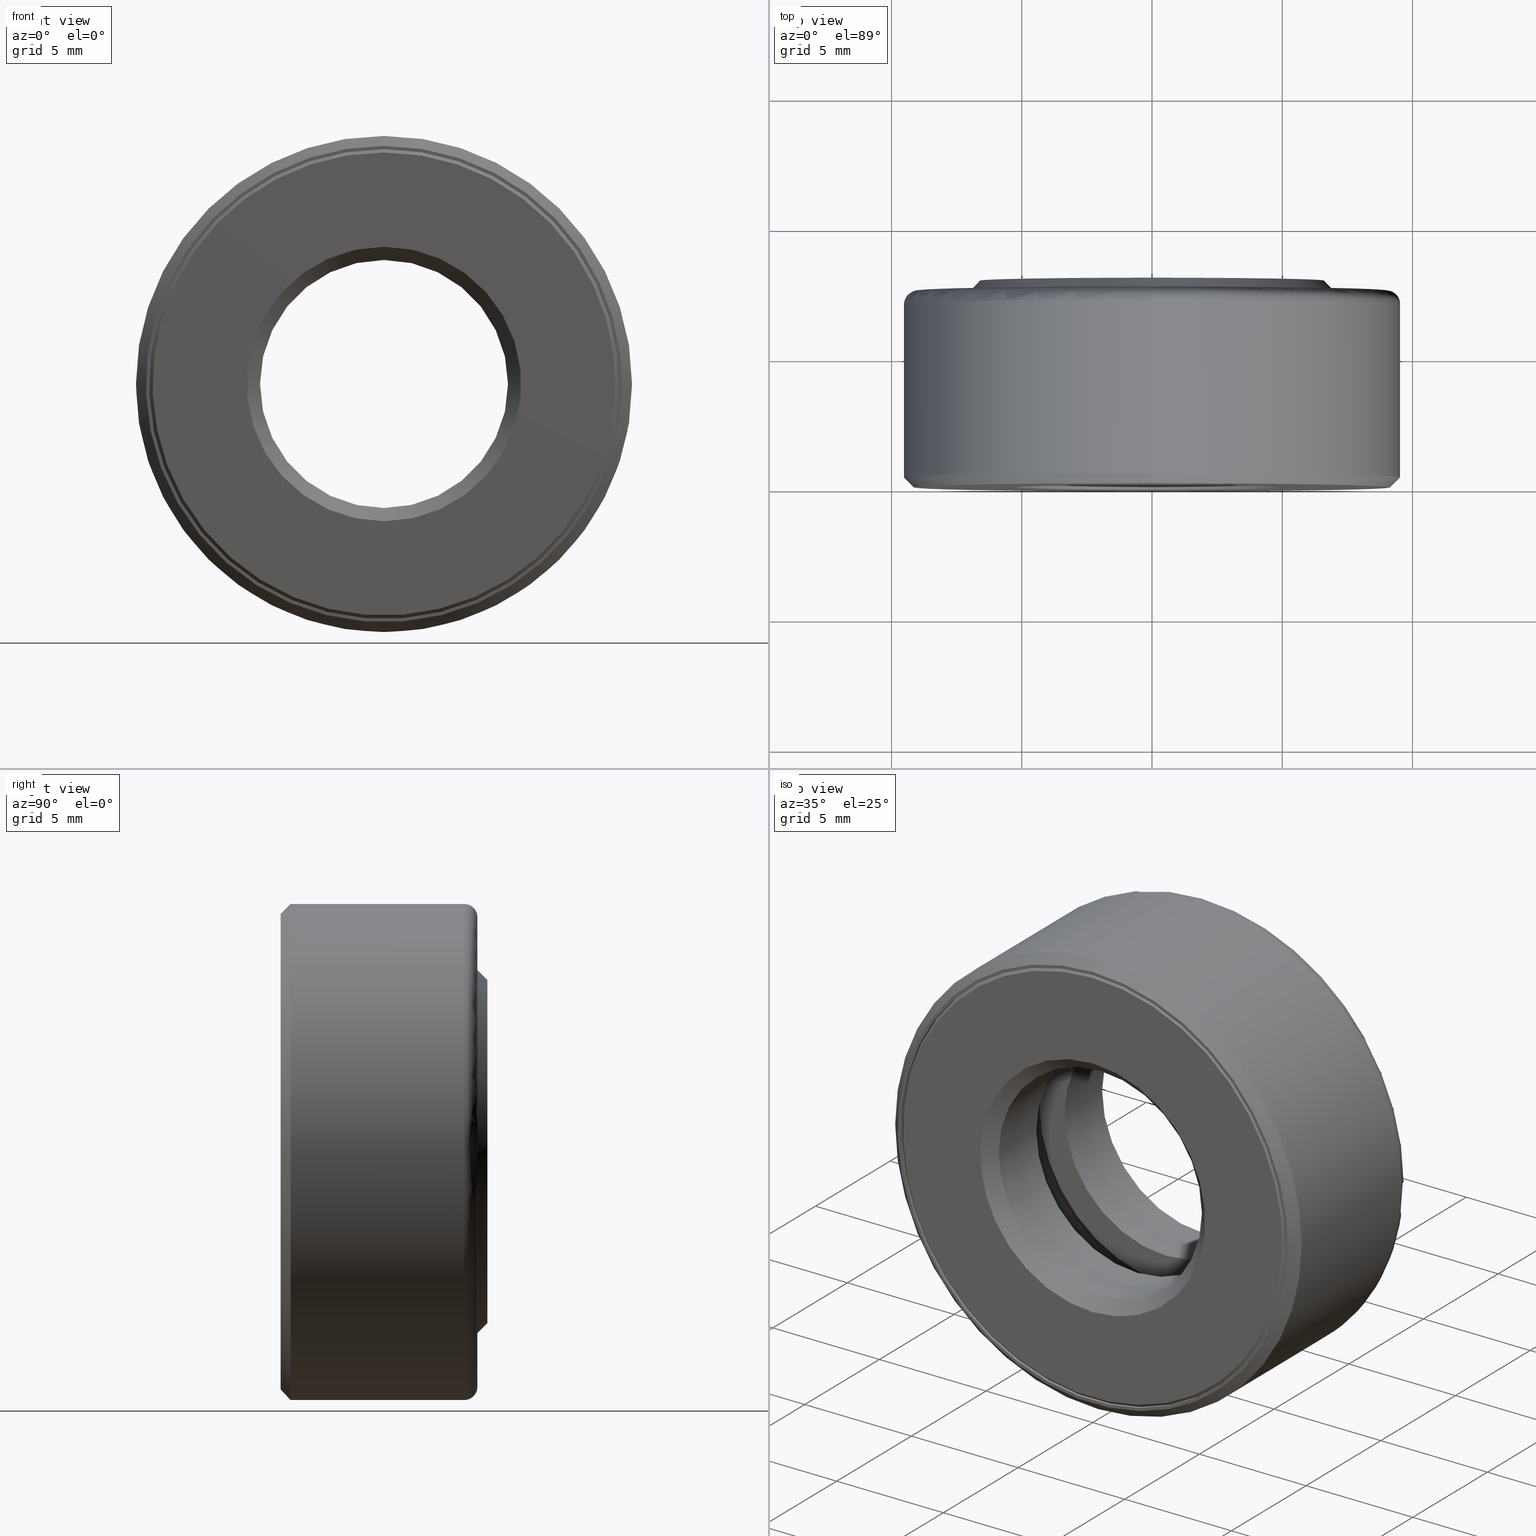
[diagram: canonical four-view strip — front | top / right | iso, engineering-drawing reading convention]
A machine part, canonical four-view strip (front | top / right | iso — engineering-drawing reading convention). The complete STEP part file that produces these views, byte-faithful:
ISO-10303-21;
HEADER;
FILE_DESCRIPTION (( 'STEP AP203' ),
    '1' );
FILE_NAME ('T-100-0.step',
    '2016-06-29T18:27:09',
    ( '' ),
    ( '' ),
    'SwSTEP 2.0',
    'SolidWorks 2016',
    '' );
FILE_SCHEMA (( 'CONFIG_CONTROL_DESIGN' ));
ENDSEC;

DATA;
#1 = CARTESIAN_POINT ( 'NONE',  ( 0.0000000000000000000, 0.02000000000000002500, 0.0000000000000000000 ) ) ;
#2 = FACE_OUTER_BOUND ( 'NONE', #391, .T. ) ;
#3 = CIRCLE ( 'NONE', #589, 0.2075000000000000700 ) ;
#4 = AXIS2_PLACEMENT_3D ( 'NONE', #219, #179, #36 ) ;
#5 = APPROVAL_STATUS ( 'not_yet_approved' ) ;
#6 = CARTESIAN_POINT ( 'NONE',  ( 0.0000000000000000000, 0.1937500000000000100, 0.2334999999999999900 ) ) ;
#7 = CARTESIAN_POINT ( 'NONE',  ( 0.0000000000000000000, 0.1187499999999999900, 0.3550000000000000400 ) ) ;
#8 = VERTEX_POINT ( 'NONE', #103 ) ;
#9 = TOROIDAL_SURFACE ( 'NONE', #300, 0.3550000000000000400, 0.02000000000000002500 ) ;
#10 = CARTESIAN_POINT ( 'NONE',  ( 0.0000000000000000000, 0.1187499999999999800, 0.3335000000000000200 ) ) ;
#11 = ADVANCED_FACE ( 'NONE', ( #110, #133 ), #441, .T. ) ;
#12 = DIRECTION ( 'NONE',  ( 0.0000000000000000000, 0.0000000000000000000, 1.000000000000000000 ) ) ;
#13 = AXIS2_PLACEMENT_3D ( 'NONE', #459, #136, #504 ) ;
#14 = ORIENTED_EDGE ( 'NONE', *, *, #332, .T. ) ;
#15 = ORIENTED_EDGE ( 'NONE', *, *, #464, .T. ) ;
#16 = CIRCLE ( 'NONE', #209, 0.2599999999999998400 ) ;
#17 = FACE_OUTER_BOUND ( 'NONE', #593, .T. ) ;
#18 = AXIS2_PLACEMENT_3D ( 'NONE', #445, #536, #451 ) ;
#19 = CARTESIAN_POINT ( 'NONE',  ( 0.0000000000000000000, -2.134256245050205900E-017, 0.0000000000000000000 ) ) ;
#20 = PRODUCT_RELATED_PRODUCT_CATEGORY ( 'detail', '', ( #278 ) ) ;
#21 = ADVANCED_FACE ( 'NONE', ( #147, #298 ), #472, .T. ) ;
#22 = CARTESIAN_POINT ( 'NONE',  ( 0.0000000000000000000, -2.134256245050205900E-017, 0.0000000000000000000 ) ) ;
#23 = VERTEX_POINT ( 'NONE', #339 ) ;
#24 = FACE_BOUND ( 'NONE', #259, .T. ) ;
#25 = EDGE_CURVE ( 'NONE', #82, #82, #116, .T. ) ;
#26 = DIRECTION ( 'NONE',  ( -0.0000000000000000000, 1.000000000000000000, -0.0000000000000000000 ) ) ;
#27 = ADVANCED_BREP_SHAPE_REPRESENTATION ( 'T-100-0', ( #211, #323, #428, #476, #372, #378, #350 ), #95 ) ;
#28 = DIRECTION ( 'NONE',  ( -0.0000000000000000000, 1.000000000000000000, -0.0000000000000000000 ) ) ;
#29 = CARTESIAN_POINT ( 'NONE',  ( -6.663504083101786500E-033, -2.161650903762001200E-017, 0.0000000000000000000 ) ) ;
#30 = AXIS2_PLACEMENT_3D ( 'NONE', #186, #471, #43 ) ;
#31 = ORIENTED_EDGE ( 'NONE', *, *, #412, .T. ) ;
#32 = DIRECTION ( 'NONE',  ( -0.0000000000000000000, 1.000000000000000000, -0.0000000000000000000 ) ) ;
#33 = FACE_OUTER_BOUND ( 'NONE', #277, .T. ) ;
#34 = DIRECTION ( 'NONE',  ( 0.0000000000000000000, 0.0000000000000000000, 1.000000000000000000 ) ) ;
#35 = EDGE_LOOP ( 'NONE', ( #190 ) ) ;
#36 = DIRECTION ( 'NONE',  ( 0.0000000000000000000, 0.0000000000000000000, 1.000000000000000000 ) ) ;
#37 = AXIS2_PLACEMENT_3D ( 'NONE', #38, #125, #457 ) ;
#38 = CARTESIAN_POINT ( 'NONE',  ( -4.562892661831489700E-016, 0.1937500000000000100, 0.0000000000000000000 ) ) ;
#39 = DIRECTION ( 'NONE',  ( 0.0000000000000000000, 0.0000000000000000000, 1.000000000000000000 ) ) ;
#40 = ORIENTED_EDGE ( 'NONE', *, *, #226, .T. ) ;
#41 = FACE_BOUND ( 'NONE', #379, .T. ) ;
#42 = CARTESIAN_POINT ( 'NONE',  ( -1.763081245911046900E-016, 0.1187500000000000400, 0.0000000000000000000 ) ) ;
#43 = DIRECTION ( 'NONE',  ( 0.0000000000000000000, -0.0000000000000000000, -1.000000000000000000 ) ) ;
#44 = ORIENTED_EDGE ( 'NONE', *, *, #477, .T. ) ;
#45 = DIRECTION ( 'NONE',  ( 0.0000000000000000000, 0.0000000000000000000, 1.000000000000000000 ) ) ;
#46 = COORDINATED_UNIVERSAL_TIME_OFFSET ( 5, 0, .BEHIND. ) ;
#47 = CIRCLE ( 'NONE', #150, 0.3500000000000000300 ) ;
#48 = EDGE_LOOP ( 'NONE', ( #285 ) ) ;
#49 = CARTESIAN_POINT ( 'NONE',  ( 0.0000000000000000000, 0.3125000000000000000, 0.0000000000000000000 ) ) ;
#50 = DIRECTION ( 'NONE',  ( 0.0000000000000000000, 0.0000000000000000000, 1.000000000000000000 ) ) ;
#51 = AXIS2_PLACEMENT_3D ( 'NONE', #235, #53, #57 ) ;
#52 = DIRECTION ( 'NONE',  ( 0.0000000000000000000, 0.0000000000000000000, 1.000000000000000000 ) ) ;
#53 = DIRECTION ( 'NONE',  ( -0.0000000000000000000, 1.000000000000000000, -0.0000000000000000000 ) ) ;
#54 = VERTEX_POINT ( 'NONE', #149 ) ;
#55 = SPHERICAL_SURFACE ( 'NONE', #408, 0.06250000000000001400 ) ;
#56 = CARTESIAN_POINT ( 'NONE',  ( 0.0000000000000000000, 0.2974999999999999900, 0.3550000000000000400 ) ) ;
#57 = DIRECTION ( 'NONE',  ( 0.0000000000000000000, 0.0000000000000000000, 1.000000000000000000 ) ) ;
#58 = AXIS2_PLACEMENT_3D ( 'NONE', #141, #142, #50 ) ;
#59 = CARTESIAN_POINT ( 'NONE',  ( 0.0000000000000000000, 1.707404996040164500E-017, 0.2075000000000000500 ) ) ;
#60 = VERTEX_POINT ( 'NONE', #383 ) ;
#61 = ADVANCED_FACE ( 'NONE', ( #394, #17 ), #586, .F. ) ;
#62 = CIRCLE ( 'NONE', #494, 0.3480000000000000300 ) ;
#63 = DATE_TIME_ROLE ( 'classification_date' ) ;
#64 = CLOSED_SHELL ( 'NONE', ( #357, #304, #87, #251, #530, #61, #594, #208, #67, #118, #346, #21, #573, #65, #581, #247 ) ) ;
#65 = ADVANCED_FACE ( 'NONE', ( #456, #353 ), #426, .F. ) ;
#66 = AXIS2_PLACEMENT_3D ( 'NONE', #321, #410, #373 ) ;
#67 = ADVANCED_FACE ( 'NONE', ( #555, #202 ), #207, .T. ) ;
#68 = APPROVAL_STATUS ( 'not_yet_approved' ) ;
#69 = PERSON_AND_ORGANIZATION ( #334, #479 ) ;
#70 = EDGE_LOOP ( 'NONE', ( #14 ) ) ;
#71 = PERSON_AND_ORGANIZATION_ROLE ( 'classification_officer' ) ;
#72 = PRODUCT_DEFINITION_SHAPE ( 'NONE', 'NONE',  #396 ) ;
#73 = DIRECTION ( 'NONE',  ( -1.000000000000000000, 0.0000000000000000000, 6.982962677686265100E-015 ) ) ;
#74 = EDGE_LOOP ( 'NONE', ( #329 ) ) ;
#75 = CIRCLE ( 'NONE', #348, 0.2334999999999999900 ) ;
#76 = FACE_OUTER_BOUND ( 'NONE', #499, .T. ) ;
#77 = AXIS2_PLACEMENT_3D ( 'NONE', #271, #32, #401 ) ;
#78 = DIRECTION ( 'NONE',  ( 0.0000000000000000000, 0.0000000000000000000, 1.000000000000000000 ) ) ;
#79 = COORDINATED_UNIVERSAL_TIME_OFFSET ( 5, 0, .BEHIND. ) ;
#80 = AXIS2_PLACEMENT_3D ( 'NONE', #558, #520, #341 ) ;
#81 = EDGE_LOOP ( 'NONE', ( #159 ) ) ;
#82 = VERTEX_POINT ( 'NONE', #196 ) ;
#83 = DIRECTION ( 'NONE',  ( 0.0000000000000000000, 0.0000000000000000000, 1.000000000000000000 ) ) ;
#84 = FACE_OUTER_BOUND ( 'NONE', #164, .T. ) ;
#85 = CARTESIAN_POINT ( 'NONE',  ( 0.0000000000000000000, 0.1937499999999999800, 0.0000000000000000000 ) ) ;
#86 = EDGE_CURVE ( 'NONE', #599, #599, #3, .T. ) ;
#87 = ADVANCED_FACE ( 'NONE', ( #76, #547 ), #312, .F. ) ;
#88 = DIRECTION ( 'NONE',  ( 0.0000000000000000000, 0.0000000000000000000, 1.000000000000000000 ) ) ;
#89 = DIRECTION ( 'NONE',  ( -0.0000000000000000000, 1.000000000000000000, 0.0000000000000000000 ) ) ;
#90 = EDGE_LOOP ( 'NONE', ( #94 ) ) ;
#91 = VERTEX_POINT ( 'NONE', #560 ) ;
#92 = CARTESIAN_POINT ( 'NONE',  ( 0.0000000000000000000, 0.0000000000000000000, 0.0000000000000000000 ) ) ;
#93 = FACE_BOUND ( 'NONE', #81, .T. ) ;
#94 = ORIENTED_EDGE ( 'NONE', *, *, #356, .F. ) ;
#95 =( GEOMETRIC_REPRESENTATION_CONTEXT ( 3 ) GLOBAL_UNCERTAINTY_ASSIGNED_CONTEXT ( ( #340 ) ) GLOBAL_UNIT_ASSIGNED_CONTEXT ( ( #473, #482, #389 ) ) REPRESENTATION_CONTEXT ( 'NONE', 'WORKASPACE' ) );
#96 = DIRECTION ( 'NONE',  ( 0.0000000000000000000, 0.0000000000000000000, 1.000000000000000000 ) ) ;
#97 = APPROVAL_PERSON_ORGANIZATION ( #575, #210, #117 ) ;
#98 = DIRECTION ( 'NONE',  ( -0.0000000000000000000, 1.000000000000000000, -0.0000000000000000000 ) ) ;
#99 = EDGE_LOOP ( 'NONE', ( #194 ) ) ;
#100 = AXIS2_PLACEMENT_3D ( 'NONE', #370, #453, #83 ) ;
#101 = VERTEX_POINT ( 'NONE', #104 ) ;
#102 = EDGE_LOOP ( 'NONE', ( #261 ) ) ;
#103 = CARTESIAN_POINT ( 'NONE',  ( 0.0000000000000000000, 0.02000000000000002500, 0.1875000000000000300 ) ) ;
#104 = CARTESIAN_POINT ( 'NONE',  ( 0.0000000000000000000, 0.004999999999999955000, 0.3550000000000000400 ) ) ;
#105 = ORIENTED_EDGE ( 'NONE', *, *, #119, .T. ) ;
#106 = CARTESIAN_POINT ( 'NONE',  ( 0.0000000000000000000, 0.2774999999999999700, 0.3550000000000000400 ) ) ;
#107 = PERSON_AND_ORGANIZATION ( #334, #479 ) ;
#108 = CIRCLE ( 'NONE', #203, 0.3749999999999999400 ) ;
#109 = CC_DESIGN_PERSON_AND_ORGANIZATION_ASSIGNMENT ( #511, #71, ( #566 ) ) ;
#110 = FACE_OUTER_BOUND ( 'NONE', #430, .T. ) ;
#111 = DIRECTION ( 'NONE',  ( 0.0000000000000000000, 0.0000000000000000000, 1.000000000000000000 ) ) ;
#112 = AXIS2_PLACEMENT_3D ( 'NONE', #137, #371, #458 ) ;
#113 = EDGE_LOOP ( 'NONE', ( #263 ) ) ;
#114 = FACE_BOUND ( 'NONE', #381, .T. ) ;
#115 = ADVANCED_FACE ( 'NONE', ( #84, #337 ), #175, .F. ) ;
#116 = CIRCLE ( 'NONE', #155, 0.2950000000000000400 ) ;
#117 = APPROVAL_ROLE ( '' ) ;
#118 = ADVANCED_FACE ( 'NONE', ( #182, #215 ), #311, .F. ) ;
#119 = EDGE_CURVE ( 'NONE', #181, #181, #554, .T. ) ;
#120 = COORDINATED_UNIVERSAL_TIME_OFFSET ( 5, 0, .BEHIND. ) ;
#121 = DIRECTION ( 'NONE',  ( -0.0000000000000000000, 1.000000000000000000, -0.0000000000000000000 ) ) ;
#122 = ORIENTED_EDGE ( 'NONE', *, *, #226, .F. ) ;
#123 = DIRECTION ( 'NONE',  ( -0.0000000000000000000, 1.000000000000000000, -0.0000000000000000000 ) ) ;
#124 = CIRCLE ( 'NONE', #135, 0.3550000000000000400 ) ;
#125 = DIRECTION ( 'NONE',  ( 0.0000000000000000000, -1.000000000000000000, 0.0000000000000000000 ) ) ;
#126 = LOCAL_TIME ( 14, 27, 9.000000000000000000, #305 ) ;
#127 = AXIS2_PLACEMENT_3D ( 'NONE', #167, #537, #306 ) ;
#128 = DIRECTION ( 'NONE',  ( -0.0000000000000000000, 1.000000000000000000, -0.0000000000000000000 ) ) ;
#129 = DIRECTION ( 'NONE',  ( 0.0000000000000000000, 0.0000000000000000000, 1.000000000000000000 ) ) ;
#130 = ORIENTED_EDGE ( 'NONE', *, *, #366, .F. ) ;
#131 = DIRECTION ( 'NONE',  ( -0.0000000000000000000, 1.000000000000000000, -0.0000000000000000000 ) ) ;
#132 = SPHERICAL_SURFACE ( 'NONE', #488, 0.06250000000000001400 ) ;
#133 = FACE_BOUND ( 'NONE', #230, .T. ) ;
#134 = PLANE ( 'NONE',  #37 ) ;
#135 = AXIS2_PLACEMENT_3D ( 'NONE', #183, #595, #39 ) ;
#136 = DIRECTION ( 'NONE',  ( -1.000000000000000000, 0.0000000000000000000, 3.491481338843132600E-015 ) ) ;
#137 = CARTESIAN_POINT ( 'NONE',  ( 0.0000000000000000000, 0.0000000000000000000, 0.0000000000000000000 ) ) ;
#138 = VERTEX_POINT ( 'NONE', #59 ) ;
#139 = CARTESIAN_POINT ( 'NONE',  ( 0.0000000000000000000, 0.2774999999999999700, 0.0000000000000000000 ) ) ;
#140 = FACE_OUTER_BOUND ( 'NONE', #369, .T. ) ;
#141 = CARTESIAN_POINT ( 'NONE',  ( 0.0000000000000000000, 0.2774999999999999700, 0.0000000000000000000 ) ) ;
#142 = DIRECTION ( 'NONE',  ( -0.0000000000000000000, 1.000000000000000000, -0.0000000000000000000 ) ) ;
#143 = APPROVAL_DATE_TIME ( #568, #210 ) ;
#144 = CLOSED_SHELL ( 'NONE', ( #291 ) ) ;
#145 = DIRECTION ( 'NONE',  ( 1.000000000000000000, 0.0000000000000000000, 0.0000000000000000000 ) ) ;
#146 = FACE_OUTER_BOUND ( 'NONE', #518, .T. ) ;
#147 = FACE_OUTER_BOUND ( 'NONE', #308, .T. ) ;
#148 = CARTESIAN_POINT ( 'NONE',  ( 0.0000000000000000000, 0.004999999999999955000, 0.0000000000000000000 ) ) ;
#149 = CARTESIAN_POINT ( 'NONE',  ( 0.0000000000000000000, 0.1937499999999999800, 0.3480000000000000300 ) ) ;
#150 = AXIS2_PLACEMENT_3D ( 'NONE', #19, #447, #584 ) ;
#151 = CC_DESIGN_APPROVAL ( #210, ( #566 ) ) ;
#152 = TOROIDAL_SURFACE ( 'NONE', #505, 0.2834999999999999700, 0.06250000000000001400 ) ;
#153 = CARTESIAN_POINT ( 'NONE',  ( 0.0000000000000000000, 0.0000000000000000000, 0.0000000000000000000 ) ) ;
#154 = CARTESIAN_POINT ( 'NONE',  ( 0.0000000000000000000, 0.2774999999999999700, 0.2949999999999999800 ) ) ;
#155 = AXIS2_PLACEMENT_3D ( 'NONE', #171, #539, #449 ) ;
#156 = MECHANICAL_CONTEXT ( 'NONE', #521, 'mechanical' ) ;
#157 = EDGE_LOOP ( 'NONE', ( #442 ) ) ;
#158 = CC_DESIGN_PERSON_AND_ORGANIZATION_ASSIGNMENT ( #107, #484, ( #278 ) ) ;
#159 = ORIENTED_EDGE ( 'NONE', *, *, #244, .T. ) ;
#160 = ADVANCED_FACE ( 'NONE', ( #114, #146 ), #134, .T. ) ;
#161 = TOROIDAL_SURFACE ( 'NONE', #77, 0.2834999999999999700, 0.06250000000000001400 ) ;
#162 = ORIENTED_EDGE ( 'NONE', *, *, #25, .F. ) ;
#163 = AXIS2_PLACEMENT_3D ( 'NONE', #139, #508, #548 ) ;
#164 = EDGE_LOOP ( 'NONE', ( #416 ) ) ;
#165 = VERTEX_POINT ( 'NONE', #384 ) ;
#166 = CIRCLE ( 'NONE', #220, 0.1875000000000000600 ) ;
#167 = CARTESIAN_POINT ( 'NONE',  ( 1.886086914230402700E-016, 0.1187499999999999900, 0.0000000000000000000 ) ) ;
#168 = ADVANCED_FACE ( 'NONE', ( #500, #600 ), #229, .T. ) ;
#169 = DIRECTION ( 'NONE',  ( -0.0000000000000000000, 1.000000000000000000, 0.0000000000000000000 ) ) ;
#170 = DIRECTION ( 'NONE',  ( 1.047444401652940000E-014, 0.0000000000000000000, 1.000000000000000000 ) ) ;
#171 = CARTESIAN_POINT ( 'NONE',  ( 0.0000000000000000000, 0.2974999999999999900, 0.0000000000000000000 ) ) ;
#172 = DIRECTION ( 'NONE',  ( 0.0000000000000000000, 0.0000000000000000000, 1.000000000000000000 ) ) ;
#173 = ORIENTED_EDGE ( 'NONE', *, *, #534, .T. ) ;
#174 = DIRECTION ( 'NONE',  ( 6.982962677686265100E-015, -0.0000000000000000000, 1.000000000000000000 ) ) ;
#175 = CYLINDRICAL_SURFACE ( 'NONE', #187, 0.1875000000000000600 ) ;
#176 = EDGE_LOOP ( 'NONE', ( #524 ) ) ;
#177 = AXIS2_PLACEMENT_3D ( 'NONE', #42, #267, #185 ) ;
#178 = DIRECTION ( 'NONE',  ( -0.0000000000000000000, 1.000000000000000000, 0.0000000000000000000 ) ) ;
#179 = DIRECTION ( 'NONE',  ( -0.0000000000000000000, 1.000000000000000000, -0.0000000000000000000 ) ) ;
#180 = AXIS2_PLACEMENT_3D ( 'NONE', #415, #279, #550 ) ;
#181 = VERTEX_POINT ( 'NONE', #289 ) ;
#182 = FACE_OUTER_BOUND ( 'NONE', #213, .T. ) ;
#183 = CARTESIAN_POINT ( 'NONE',  ( 0.0000000000000000000, 0.1187499999999999900, 0.0000000000000000000 ) ) ;
#184 = AXIS2_PLACEMENT_3D ( 'NONE', #275, #221, #330 ) ;
#185 = DIRECTION ( 'NONE',  ( 0.0000000000000000000, -0.0000000000000000000, -1.000000000000000000 ) ) ;
#186 = CARTESIAN_POINT ( 'NONE',  ( 1.438303121664270200E-016, 0.1937500000000000100, 0.0000000000000000000 ) ) ;
#187 = AXIS2_PLACEMENT_3D ( 'NONE', #402, #217, #34 ) ;
#188 = APPROVAL_DATE_TIME ( #432, #424 ) ;
#189 = CIRCLE ( 'NONE', #596, 0.1875000000000000600 ) ;
#190 = ORIENTED_EDGE ( 'NONE', *, *, #433, .F. ) ;
#191 = DIRECTION ( 'NONE',  ( -0.0000000000000000000, 1.000000000000000000, -0.0000000000000000000 ) ) ;
#192 = DIRECTION ( 'NONE',  ( 0.0000000000000000000, 0.0000000000000000000, 1.000000000000000000 ) ) ;
#193 = DIRECTION ( 'NONE',  ( 0.0000000000000000000, 0.0000000000000000000, 1.000000000000000000 ) ) ;
#194 = ORIENTED_EDGE ( 'NONE', *, *, #579, .F. ) ;
#195 = EDGE_CURVE ( 'NONE', #309, #309, #124, .T. ) ;
#196 = CARTESIAN_POINT ( 'NONE',  ( 0.0000000000000000000, 0.2974999999999999900, 0.2950000000000000400 ) ) ;
#197 = DIRECTION ( 'NONE',  ( -0.0000000000000000000, 1.000000000000000000, -0.0000000000000000000 ) ) ;
#198 = CARTESIAN_POINT ( 'NONE',  ( 0.0000000000000000000, 0.1187499999999999900, 0.2334999999999999900 ) ) ;
#199 = ORIENTED_EDGE ( 'NONE', *, *, #429, .F. ) ;
#200 = LOCAL_TIME ( 14, 27, 9.000000000000000000, #214 ) ;
#201 = FACE_OUTER_BOUND ( 'NONE', #512, .T. ) ;
#202 = FACE_BOUND ( 'NONE', #363, .T. ) ;
#203 = AXIS2_PLACEMENT_3D ( 'NONE', #258, #28, #78 ) ;
#204 = PERSON_AND_ORGANIZATION ( #334, #479 ) ;
#205 = AXIS2_PLACEMENT_3D ( 'NONE', #1, #333, #12 ) ;
#206 = EDGE_LOOP ( 'NONE', ( #130 ) ) ;
#207 = CONICAL_SURFACE ( 'NONE', #4, 0.3600000000000000400, 0.7853981633974441700 ) ;
#208 = ADVANCED_FACE ( 'NONE', ( #462, #418 ), #368, .T. ) ;
#209 = AXIS2_PLACEMENT_3D ( 'NONE', #49, #382, #272 ) ;
#210 = APPROVAL ( #486, 'UNSPECIFIED' ) ;
#211 = MANIFOLD_SOLID_BREP ( 'Revolve2[1]', #64 ) ;
#212 = DIRECTION ( 'NONE',  ( 0.0000000000000000000, 0.0000000000000000000, 1.000000000000000000 ) ) ;
#213 = EDGE_LOOP ( 'NONE', ( #234 ) ) ;
#214 = COORDINATED_UNIVERSAL_TIME_OFFSET ( 5, 0, .BEHIND. ) ;
#215 = FACE_BOUND ( 'NONE', #70, .T. ) ;
#216 = EDGE_LOOP ( 'NONE', ( #578 ) ) ;
#217 = DIRECTION ( 'NONE',  ( -0.0000000000000000000, 1.000000000000000000, -0.0000000000000000000 ) ) ;
#218 = DIRECTION ( 'NONE',  ( -0.0000000000000000000, 1.000000000000000000, -0.0000000000000000000 ) ) ;
#219 = CARTESIAN_POINT ( 'NONE',  ( 0.0000000000000000000, -2.134256245050205600E-017, 0.0000000000000000000 ) ) ;
#220 = AXIS2_PLACEMENT_3D ( 'NONE', #331, #467, #232 ) ;
#221 = DIRECTION ( 'NONE',  ( -0.0000000000000000000, 1.000000000000000000, -0.0000000000000000000 ) ) ;
#222 = APPROVAL_PERSON_ORGANIZATION ( #69, #269, #528 ) ;
#223 = DIRECTION ( 'NONE',  ( 0.0000000000000000000, 0.0000000000000000000, 1.000000000000000000 ) ) ;
#224 = ORIENTED_EDGE ( 'NONE', *, *, #244, .F. ) ;
#225 = AXIS2_PLACEMENT_3D ( 'NONE', #260, #264, #496 ) ;
#226 = EDGE_CURVE ( 'NONE', #54, #54, #62, .T. ) ;
#227 = CALENDAR_DATE ( 2016, 29, 6 ) ;
#228 = VERTEX_POINT ( 'NONE', #243 ) ;
#229 = CONICAL_SURFACE ( 'NONE', #66, 0.2599999999999998400, 0.7853981633974495000 ) ;
#230 = EDGE_LOOP ( 'NONE', ( #347 ) ) ;
#231 = DIRECTION ( 'NONE',  ( 0.0000000000000000000, 0.0000000000000000000, 1.000000000000000000 ) ) ;
#232 = DIRECTION ( 'NONE',  ( 0.0000000000000000000, 0.0000000000000000000, 1.000000000000000000 ) ) ;
#233 = FACE_OUTER_BOUND ( 'NONE', #497, .T. ) ;
#234 = ORIENTED_EDGE ( 'NONE', *, *, #254, .F. ) ;
#235 = CARTESIAN_POINT ( 'NONE',  ( 0.0000000000000000000, 0.1187499999999999900, 0.0000000000000000000 ) ) ;
#236 = CARTESIAN_POINT ( 'NONE',  ( 0.0000000000000000000, 0.3125000000000000000, 0.2075000000000000700 ) ) ;
#237 = SHAPE_DEFINITION_REPRESENTATION ( #72, #27 ) ;
#238 = CARTESIAN_POINT ( 'NONE',  ( 0.0000000000000000000, 0.3125000000000000000, 0.2599999999999998400 ) ) ;
#239 = AXIS2_PLACEMENT_3D ( 'NONE', #450, #218, #313 ) ;
#240 = CLOSED_SHELL ( 'NONE', ( #527 ) ) ;
#241 = VERTEX_POINT ( 'NONE', #388 ) ;
#242 = CYLINDRICAL_SURFACE ( 'NONE', #540, 0.1875000000000000600 ) ;
#243 = CARTESIAN_POINT ( 'NONE',  ( 0.0000000000000000000, 0.1187500000000000600, 0.1875000000000000600 ) ) ;
#244 = EDGE_CURVE ( 'NONE', #287, #287, #481, .T. ) ;
#245 = ADVANCED_FACE ( 'NONE', ( ), #344, .T. ) ;
#246 = EDGE_LOOP ( 'NONE', ( #162 ) ) ;
#247 = ADVANCED_FACE ( 'NONE', ( #41, #434 ), #549, .F. ) ;
#248 = CIRCLE ( 'NONE', #376, 0.2075000000000000500 ) ;
#249 = ORIENTED_EDGE ( 'NONE', *, *, #552, .F. ) ;
#250 = PERSON_AND_ORGANIZATION_ROLE ( 'design_supplier' ) ;
#251 = ADVANCED_FACE ( 'NONE', ( #233, #93 ), #375, .F. ) ;
#252 = AXIS2_PLACEMENT_3D ( 'NONE', #324, #89, #413 ) ;
#253 = PLANE ( 'NONE',  #127 ) ;
#254 = EDGE_CURVE ( 'NONE', #165, #165, #514, .T. ) ;
#255 = FACE_OUTER_BOUND ( 'NONE', #437, .T. ) ;
#256 = CIRCLE ( 'NONE', #205, 0.1875000000000000300 ) ;
#257 = CALENDAR_DATE ( 2016, 29, 6 ) ;
#258 = CARTESIAN_POINT ( 'NONE',  ( 0.0000000000000000000, 0.01500000000000001200, 0.0000000000000000000 ) ) ;
#259 = EDGE_LOOP ( 'NONE', ( #44 ) ) ;
#260 = CARTESIAN_POINT ( 'NONE',  ( 0.0000000000000000000, 0.2974999999999999900, 0.0000000000000000000 ) ) ;
#261 = ORIENTED_EDGE ( 'NONE', *, *, #332, .F. ) ;
#262 = CIRCLE ( 'NONE', #58, 0.3550000000000000400 ) ;
#263 = ORIENTED_EDGE ( 'NONE', *, *, #567, .T. ) ;
#264 = DIRECTION ( 'NONE',  ( 0.0000000000000000000, -1.000000000000000000, 0.0000000000000000000 ) ) ;
#265 = DIRECTION ( 'NONE',  ( -0.0000000000000000000, 1.000000000000000000, -0.0000000000000000000 ) ) ;
#266 = VERTEX_POINT ( 'NONE', #345 ) ;
#267 = DIRECTION ( 'NONE',  ( 0.0000000000000000000, -1.000000000000000000, 0.0000000000000000000 ) ) ;
#268 = CIRCLE ( 'NONE', #478, 0.3550000000000000400 ) ;
#269 = APPROVAL ( #68, 'UNSPECIFIED' ) ;
#270 = DIRECTION ( 'NONE',  ( 0.0000000000000000000, 0.0000000000000000000, -1.000000000000000000 ) ) ;
#271 = CARTESIAN_POINT ( 'NONE',  ( 0.0000000000000000000, 0.1562500000000000000, 0.0000000000000000000 ) ) ;
#272 = DIRECTION ( 'NONE',  ( 0.0000000000000000000, 0.0000000000000000000, 1.000000000000000000 ) ) ;
#273 = AXIS2_PLACEMENT_3D ( 'NONE', #360, #169, #490 ) ;
#274 = ADVANCED_FACE ( 'NONE', ( #541, #310 ), #161, .F. ) ;
#275 = CARTESIAN_POINT ( 'NONE',  ( 0.0000000000000000000, 0.2974999999999999900, 0.0000000000000000000 ) ) ;
#276 = ORIENTED_EDGE ( 'NONE', *, *, #254, .T. ) ;
#277 = EDGE_LOOP ( 'NONE', ( #606 ) ) ;
#278 = PRODUCT ( 'T-100-0', 'T-100-0', '', ( #156 ) ) ;
#279 = DIRECTION ( 'NONE',  ( -0.0000000000000000000, 1.000000000000000000, -0.0000000000000000000 ) ) ;
#280 = FACE_OUTER_BOUND ( 'NONE', #99, .T. ) ;
#281 = ORIENTED_EDGE ( 'NONE', *, *, #195, .F. ) ;
#282 = CARTESIAN_POINT ( 'NONE',  ( 0.0000000000000000000, 0.2774999999999999700, 0.0000000000000000000 ) ) ;
#283 = AXIS2_PLACEMENT_3D ( 'NONE', #489, #123, #588 ) ;
#284 =( LENGTH_UNIT ( ) NAMED_UNIT ( * ) SI_UNIT ( $, .METRE. ) );
#285 = ORIENTED_EDGE ( 'NONE', *, *, #286, .F. ) ;
#286 = EDGE_CURVE ( 'NONE', #385, #385, #108, .T. ) ;
#287 = VERTEX_POINT ( 'NONE', #154 ) ;
#288 = FACE_OUTER_BOUND ( 'NONE', #325, .T. ) ;
#289 = CARTESIAN_POINT ( 'NONE',  ( 0.0000000000000000000, 0.1937500000000000100, 0.3335000000000000200 ) ) ;
#290 = DIRECTION ( 'NONE',  ( -0.0000000000000000000, 1.000000000000000000, -0.0000000000000000000 ) ) ;
#291 = ADVANCED_FACE ( 'NONE', ( ), #297, .T. ) ;
#292 = DIRECTION ( 'NONE',  ( 0.0000000000000000000, 0.0000000000000000000, 1.000000000000000000 ) ) ;
#293 = DIMENSIONAL_EXPONENTS ( 1.000000000000000000, 0.0000000000000000000, 0.0000000000000000000, 0.0000000000000000000, 0.0000000000000000000, 0.0000000000000000000, 0.0000000000000000000 ) ;
#294 = CC_DESIGN_SECURITY_CLASSIFICATION ( #566, ( #448 ) ) ;
#295 = ORIENTED_EDGE ( 'NONE', *, *, #25, .T. ) ;
#296 = PERSON_AND_ORGANIZATION ( #334, #479 ) ;
#297 = SPHERICAL_SURFACE ( 'NONE', #318, 0.06250000000000001400 ) ;
#298 = FACE_BOUND ( 'NONE', #485, .T. ) ;
#299 = EDGE_CURVE ( 'NONE', #361, #361, #47, .T. ) ;
#300 = AXIS2_PLACEMENT_3D ( 'NONE', #282, #290, #52 ) ;
#301 = DATE_TIME_ROLE ( 'creation_date' ) ;
#302 = EDGE_LOOP ( 'NONE', ( #419 ) ) ;
#303 = FACE_OUTER_BOUND ( 'NONE', #502, .T. ) ;
#304 = ADVANCED_FACE ( 'NONE', ( #585, #574 ), #253, .F. ) ;
#305 = COORDINATED_UNIVERSAL_TIME_OFFSET ( 5, 0, .BEHIND. ) ;
#306 = DIRECTION ( 'NONE',  ( 0.0000000000000000000, -0.0000000000000000000, -1.000000000000000000 ) ) ;
#307 = CARTESIAN_POINT ( 'NONE',  ( 0.0000000000000000000, 0.2925000000000000400, 0.0000000000000000000 ) ) ;
#308 = EDGE_LOOP ( 'NONE', ( #351 ) ) ;
#309 = VERTEX_POINT ( 'NONE', #7 ) ;
#310 = FACE_OUTER_BOUND ( 'NONE', #216, .T. ) ;
#311 = PLANE ( 'NONE',  #531 ) ;
#312 = CYLINDRICAL_SURFACE ( 'NONE', #18, 0.3550000000000000400 ) ;
#313 = DIRECTION ( 'NONE',  ( 0.0000000000000000000, 0.0000000000000000000, 1.000000000000000000 ) ) ;
#314 = DIRECTION ( 'NONE',  ( 0.0000000000000000000, 0.0000000000000000000, -1.000000000000000000 ) ) ;
#315 = AXIS2_PLACEMENT_3D ( 'NONE', #153, #197, #475 ) ;
#316 = DIRECTION ( 'NONE',  ( 0.0000000000000000000, -1.000000000000000000, 0.0000000000000000000 ) ) ;
#317 = ORIENTED_EDGE ( 'NONE', *, *, #299, .F. ) ;
#318 = AXIS2_PLACEMENT_3D ( 'NONE', #406, #533, #170 ) ;
#319 = VERTEX_POINT ( 'NONE', #106 ) ;
#320 = ORIENTED_EDGE ( 'NONE', *, *, #552, .T. ) ;
#321 = CARTESIAN_POINT ( 'NONE',  ( 0.0000000000000000000, 0.3125000000000000000, 0.0000000000000000000 ) ) ;
#322 = ADVANCED_FACE ( 'NONE', ( ), #55, .T. ) ;
#323 = MANIFOLD_SOLID_BREP ( 'Revolve2[2]', #463 ) ;
#324 = CARTESIAN_POINT ( 'NONE',  ( 0.0000000000000000000, 0.2774999999999999700, 0.0000000000000000000 ) ) ;
#325 = EDGE_LOOP ( 'NONE', ( #224 ) ) ;
#326 = APPROVAL_PERSON_ORGANIZATION ( #343, #424, #335 ) ;
#327 = CYLINDRICAL_SURFACE ( 'NONE', #474, 0.3550000000000000400 ) ;
#328 = CC_DESIGN_PERSON_AND_ORGANIZATION_ASSIGNMENT ( #204, #397, ( #448 ) ) ;
#329 = ORIENTED_EDGE ( 'NONE', *, *, #477, .F. ) ;
#330 = DIRECTION ( 'NONE',  ( 0.0000000000000000000, 0.0000000000000000000, 1.000000000000000000 ) ) ;
#331 = CARTESIAN_POINT ( 'NONE',  ( 0.0000000000000000000, 0.1187500000000000600, 0.0000000000000000000 ) ) ;
#332 = EDGE_CURVE ( 'NONE', #23, #23, #525, .T. ) ;
#333 = DIRECTION ( 'NONE',  ( -0.0000000000000000000, 1.000000000000000000, -0.0000000000000000000 ) ) ;
#334 = PERSON ( 'UNSPECIFIED', 'UNSPECIFIED', 'UNSPECIFIED', ('UNSPECIFIED'), ('UNSPECIFIED'), ('UNSPECIFIED') ) ;
#335 = APPROVAL_ROLE ( '' ) ;
#336 = FACE_OUTER_BOUND ( 'NONE', #583, .T. ) ;
#337 = FACE_OUTER_BOUND ( 'NONE', #435, .T. ) ;
#338 = APPLICATION_PROTOCOL_DEFINITION ( 'international standard', 'config_control_design', 1994, #516 ) ;
#339 = CARTESIAN_POINT ( 'NONE',  ( 0.0000000000000000000, -2.189045562473796700E-017, 0.3550000000000000400 ) ) ;
#340 = UNCERTAINTY_MEASURE_WITH_UNIT (LENGTH_MEASURE( 1.000000000000000100E-005 ), #473, 'distance_accuracy_value', 'NONE');
#341 = DIRECTION ( 'NONE',  ( 0.0000000000000000000, 0.0000000000000000000, 1.000000000000000000 ) ) ;
#342 = ORIENTED_EDGE ( 'NONE', *, *, #464, .F. ) ;
#343 = PERSON_AND_ORGANIZATION ( #334, #479 ) ;
#344 = SPHERICAL_SURFACE ( 'NONE', #13, 0.06250000000000001400 ) ;
#345 = CARTESIAN_POINT ( 'NONE',  ( 0.0000000000000000000, 0.1937499999999999800, 0.1875000000000000600 ) ) ;
#346 = ADVANCED_FACE ( 'NONE', ( #374, #405 ), #327, .F. ) ;
#347 = ORIENTED_EDGE ( 'NONE', *, *, #86, .F. ) ;
#348 = AXIS2_PLACEMENT_3D ( 'NONE', #598, #98, #192 ) ;
#349 = ADVANCED_FACE ( 'NONE', ( #201, #400 ), #380, .F. ) ;
#350 = AXIS2_PLACEMENT_3D ( 'NONE', #427, #111, #431 ) ;
#351 = ORIENTED_EDGE ( 'NONE', *, *, #543, .F. ) ;
#352 = CALENDAR_DATE ( 2016, 29, 6 ) ;
#353 = FACE_BOUND ( 'NONE', #113, .T. ) ;
#354 = AXIS2_PLACEMENT_3D ( 'NONE', #355, #582, #535 ) ;
#355 = CARTESIAN_POINT ( 'NONE',  ( 0.0000000000000000000, -2.189045562473796700E-017, 0.0000000000000000000 ) ) ;
#356 = EDGE_CURVE ( 'NONE', #91, #91, #444, .T. ) ;
#357 = ADVANCED_FACE ( 'NONE', ( #280, #33 ), #152, .F. ) ;
#358 = CARTESIAN_POINT ( 'NONE',  ( 0.0000000000000000000, 0.1562500000000000000, 0.0000000000000000000 ) ) ;
#359 = EDGE_LOOP ( 'NONE', ( #515 ) ) ;
#360 = CARTESIAN_POINT ( 'NONE',  ( 0.0000000000000000000, 0.3125000000000000000, 0.0000000000000000000 ) ) ;
#361 = VERTEX_POINT ( 'NONE', #564 ) ;
#362 = CYLINDRICAL_SURFACE ( 'NONE', #386, 0.2949999999999999800 ) ;
#363 = EDGE_LOOP ( 'NONE', ( #276 ) ) ;
#364 = CARTESIAN_POINT ( 'NONE',  ( 0.2834999999999999700, 0.1562500000000000000, -1.979669919124056800E-015 ) ) ;
#365 = DIRECTION ( 'NONE',  ( 0.0000000000000000000, 0.0000000000000000000, 1.000000000000000000 ) ) ;
#366 = EDGE_CURVE ( 'NONE', #409, #409, #519, .T. ) ;
#367 = ORIENTED_EDGE ( 'NONE', *, *, #567, .F. ) ;
#368 = CYLINDRICAL_SURFACE ( 'NONE', #112, 0.3750000000000000600 ) ;
#369 = EDGE_LOOP ( 'NONE', ( #367 ) ) ;
#370 = CARTESIAN_POINT ( 'NONE',  ( 0.0000000000000000000, 0.1937500000000000100, 0.0000000000000000000 ) ) ;
#371 = DIRECTION ( 'NONE',  ( -0.0000000000000000000, 1.000000000000000000, -0.0000000000000000000 ) ) ;
#372 = MANIFOLD_SOLID_BREP ( 'BALLS[2]', #526 ) ;
#373 = DIRECTION ( 'NONE',  ( 0.0000000000000000000, 0.0000000000000000000, -1.000000000000000000 ) ) ;
#374 = FACE_OUTER_BOUND ( 'NONE', #102, .T. ) ;
#375 = PLANE ( 'NONE',  #252 ) ;
#376 = AXIS2_PLACEMENT_3D ( 'NONE', #513, #510, #88 ) ;
#377 = DIRECTION ( 'NONE',  ( -0.0000000000000000000, 1.000000000000000000, -0.0000000000000000000 ) ) ;
#378 = MANIFOLD_SOLID_BREP ( 'BALLS[3]', #144 ) ;
#379 = EDGE_LOOP ( 'NONE', ( #249 ) ) ;
#380 = CONICAL_SURFACE ( 'NONE', #565, 0.1875000000000000600, 0.7853981633974491700 ) ;
#381 = EDGE_LOOP ( 'NONE', ( #105 ) ) ;
#382 = DIRECTION ( 'NONE',  ( -0.0000000000000000000, 1.000000000000000000, -0.0000000000000000000 ) ) ;
#383 = CARTESIAN_POINT ( 'NONE',  ( 0.0000000000000000000, 0.2245000000000000900, 0.3479999999999999800 ) ) ;
#384 = CARTESIAN_POINT ( 'NONE',  ( 0.0000000000000000000, -2.134256245050205600E-017, 0.3600000000000000400 ) ) ;
#385 = VERTEX_POINT ( 'NONE', #569 ) ;
#386 = AXIS2_PLACEMENT_3D ( 'NONE', #461, #377, #96 ) ;
#387 = FACE_OUTER_BOUND ( 'NONE', #576, .T. ) ;
#388 = CARTESIAN_POINT ( 'NONE',  ( 0.0000000000000000000, 0.2774999999999999700, 0.3750000000000001100 ) ) ;
#389 =( NAMED_UNIT ( * ) SI_UNIT ( $, .STERADIAN. ) SOLID_ANGLE_UNIT ( ) );
#390 = PERSON_AND_ORGANIZATION ( #334, #479 ) ;
#391 = EDGE_LOOP ( 'NONE', ( #342 ) ) ;
#392 = FACE_BOUND ( 'NONE', #587, .T. ) ;
#393 = SECURITY_CLASSIFICATION_LEVEL ( 'unclassified' ) ;
#394 = FACE_BOUND ( 'NONE', #246, .T. ) ;
#395 = AXIS2_PLACEMENT_3D ( 'NONE', #544, #316, #314 ) ;
#396 = PRODUCT_DEFINITION ( 'UNKNOWN', '', #448, #422 ) ;
#397 = PERSON_AND_ORGANIZATION_ROLE ( 'creator' ) ;
#398 = CARTESIAN_POINT ( 'NONE',  ( 0.0000000000000000000, 0.1937499999999999800, 0.0000000000000000000 ) ) ;
#399 = VERTEX_POINT ( 'NONE', #238 ) ;
#400 = FACE_BOUND ( 'NONE', #90, .T. ) ;
#401 = DIRECTION ( 'NONE',  ( 0.0000000000000000000, 0.0000000000000000000, 1.000000000000000000 ) ) ;
#402 = CARTESIAN_POINT ( 'NONE',  ( 0.0000000000000000000, 0.0000000000000000000, 0.0000000000000000000 ) ) ;
#403 = LOCAL_TIME ( 14, 27, 9.000000000000000000, #120 ) ;
#404 = EDGE_LOOP ( 'NONE', ( #173 ) ) ;
#405 = FACE_OUTER_BOUND ( 'NONE', #176, .T. ) ;
#406 = CARTESIAN_POINT ( 'NONE',  ( -2.969504878686084500E-015, 0.1562500000000000000, -0.2834999999999999700 ) ) ;
#407 = ORIENTED_EDGE ( 'NONE', *, *, #412, .F. ) ;
#408 = AXIS2_PLACEMENT_3D ( 'NONE', #364, #174, #73 ) ;
#409 = VERTEX_POINT ( 'NONE', #10 ) ;
#410 = DIRECTION ( 'NONE',  ( 0.0000000000000000000, -1.000000000000000000, 0.0000000000000000000 ) ) ;
#411 = CIRCLE ( 'NONE', #184, 0.3550000000000000400 ) ;
#412 = EDGE_CURVE ( 'NONE', #266, #266, #189, .T. ) ;
#413 = DIRECTION ( 'NONE',  ( 0.0000000000000000000, 0.0000000000000000000, 1.000000000000000000 ) ) ;
#414 = CALENDAR_DATE ( 2016, 29, 6 ) ;
#415 = CARTESIAN_POINT ( 'NONE',  ( 0.0000000000000000000, 0.2774999999999999700, 0.0000000000000000000 ) ) ;
#416 = ORIENTED_EDGE ( 'NONE', *, *, #356, .T. ) ;
#417 = LENGTH_MEASURE_WITH_UNIT ( LENGTH_MEASURE( 0.02539999999999999900 ), #284 );
#418 = FACE_OUTER_BOUND ( 'NONE', #601, .T. ) ;
#419 = ORIENTED_EDGE ( 'NONE', *, *, #522, .T. ) ;
#420 = PLANE ( 'NONE',  #80 ) ;
#421 = CARTESIAN_POINT ( 'NONE',  ( 0.0000000000000000000, 0.2245000000000000900, 0.0000000000000000000 ) ) ;
#422 = DESIGN_CONTEXT ( 'detailed design', #516, 'design' ) ;
#423 = PERSON_AND_ORGANIZATION_ROLE ( 'creator' ) ;
#424 = APPROVAL ( #5, 'UNSPECIFIED' ) ;
#425 = VERTEX_POINT ( 'NONE', #56 ) ;
#426 = CONICAL_SURFACE ( 'NONE', #395, 0.1875000000000000300, 0.7853981633974487200 ) ;
#427 = CARTESIAN_POINT ( 'NONE',  ( 0.0000000000000000000, 0.0000000000000000000, 0.0000000000000000000 ) ) ;
#428 = MANIFOLD_SOLID_BREP ( 'Revolve3', #240 ) ;
#429 = EDGE_CURVE ( 'NONE', #425, #425, #411, .T. ) ;
#430 = EDGE_LOOP ( 'NONE', ( #542 ) ) ;
#431 = DIRECTION ( 'NONE',  ( 1.000000000000000000, 0.0000000000000000000, 0.0000000000000000000 ) ) ;
#432 = DATE_AND_TIME ( #553, #200 ) ;
#433 = EDGE_CURVE ( 'NONE', #399, #399, #16, .T. ) ;
#434 = FACE_OUTER_BOUND ( 'NONE', #460, .T. ) ;
#435 = EDGE_LOOP ( 'NONE', ( #407 ) ) ;
#436 = DIRECTION ( 'NONE',  ( -0.0000000000000000000, 1.000000000000000000, -0.0000000000000000000 ) ) ;
#437 = EDGE_LOOP ( 'NONE', ( #199 ) ) ;
#438 = DATE_AND_TIME ( #352, #592 ) ;
#439 = ORIENTED_EDGE ( 'NONE', *, *, #579, .T. ) ;
#440 = AXIS2_PLACEMENT_3D ( 'NONE', #307, #121, #129 ) ;
#441 = PLANE ( 'NONE',  #273 ) ;
#442 = ORIENTED_EDGE ( 'NONE', *, *, #195, .T. ) ;
#443 = CARTESIAN_POINT ( 'NONE',  ( 0.0000000000000000000, 0.2925000000000000400, 0.0000000000000000000 ) ) ;
#444 = CIRCLE ( 'NONE', #440, 0.1875000000000000600 ) ;
#445 = CARTESIAN_POINT ( 'NONE',  ( 0.0000000000000000000, 0.0000000000000000000, 0.0000000000000000000 ) ) ;
#446 = ORIENTED_EDGE ( 'NONE', *, *, #522, .F. ) ;
#447 = DIRECTION ( 'NONE',  ( -0.0000000000000000000, 1.000000000000000000, -0.0000000000000000000 ) ) ;
#448 = PRODUCT_DEFINITION_FORMATION_WITH_SPECIFIED_SOURCE ( 'ANY', '', #278, .NOT_KNOWN. ) ;
#449 = DIRECTION ( 'NONE',  ( 0.0000000000000000000, 0.0000000000000000000, 1.000000000000000000 ) ) ;
#450 = CARTESIAN_POINT ( 'NONE',  ( 0.0000000000000000000, 0.1187499999999999800, 0.0000000000000000000 ) ) ;
#451 = DIRECTION ( 'NONE',  ( 0.0000000000000000000, 0.0000000000000000000, 1.000000000000000000 ) ) ;
#452 = APPROVAL_DATE_TIME ( #590, #269 ) ;
#453 = DIRECTION ( 'NONE',  ( -0.0000000000000000000, 1.000000000000000000, -0.0000000000000000000 ) ) ;
#454 = ORIENTED_EDGE ( 'NONE', *, *, #286, .T. ) ;
#455 = VERTEX_POINT ( 'NONE', #198 ) ;
#456 = FACE_OUTER_BOUND ( 'NONE', #74, .T. ) ;
#457 = DIRECTION ( 'NONE',  ( 0.0000000000000000000, -0.0000000000000000000, -1.000000000000000000 ) ) ;
#458 = DIRECTION ( 'NONE',  ( 0.0000000000000000000, 0.0000000000000000000, 1.000000000000000000 ) ) ;
#459 = CARTESIAN_POINT ( 'NONE',  ( 9.898349595620284200E-016, 0.1562500000000000000, 0.2834999999999999700 ) ) ;
#460 = EDGE_LOOP ( 'NONE', ( #439 ) ) ;
#461 = CARTESIAN_POINT ( 'NONE',  ( 0.0000000000000000000, 0.0000000000000000000, 0.0000000000000000000 ) ) ;
#462 = FACE_OUTER_BOUND ( 'NONE', #529, .T. ) ;
#463 = CLOSED_SHELL ( 'NONE', ( #160, #274, #480, #115, #349, #11, #168, #604 ) ) ;
#464 = EDGE_CURVE ( 'NONE', #562, #562, #75, .T. ) ;
#465 = DIRECTION ( 'NONE',  ( -0.0000000000000000000, 1.000000000000000000, -0.0000000000000000000 ) ) ;
#466 = LOCAL_TIME ( 14, 27, 9.000000000000000000, #79 ) ;
#467 = DIRECTION ( 'NONE',  ( -0.0000000000000000000, 1.000000000000000000, -0.0000000000000000000 ) ) ;
#468 = CC_DESIGN_APPROVAL ( #424, ( #396 ) ) ;
#469 = EDGE_LOOP ( 'NONE', ( #40 ) ) ;
#470 = CC_DESIGN_PERSON_AND_ORGANIZATION_ASSIGNMENT ( #390, #250, ( #448 ) ) ;
#471 = DIRECTION ( 'NONE',  ( 0.0000000000000000000, -1.000000000000000000, 0.0000000000000000000 ) ) ;
#472 = CONICAL_SURFACE ( 'NONE', #556, 0.3500000000000000300, 0.7853981633974521600 ) ;
#473 =( CONVERSION_BASED_UNIT ( 'INCH', #417 ) LENGTH_UNIT ( ) NAMED_UNIT ( #293 ) );
#474 = AXIS2_PLACEMENT_3D ( 'NONE', #492, #495, #212 ) ;
#475 = DIRECTION ( 'NONE',  ( 0.0000000000000000000, 0.0000000000000000000, 1.000000000000000000 ) ) ;
#476 = MANIFOLD_SOLID_BREP ( 'BALLS[1]', #605 ) ;
#477 = EDGE_CURVE ( 'NONE', #138, #138, #248, .T. ) ;
#478 = AXIS2_PLACEMENT_3D ( 'NONE', #148, #191, #193 ) ;
#479 = ORGANIZATION ( 'UNSPECIFIED', 'UNSPECIFIED', '' ) ;
#480 = ADVANCED_FACE ( 'NONE', ( #392, #2 ), #509, .T. ) ;
#481 = CIRCLE ( 'NONE', #163, 0.2949999999999999800 ) ;
#482 =( NAMED_UNIT ( * ) PLANE_ANGLE_UNIT ( ) SI_UNIT ( $, .RADIAN. ) );
#483 = EDGE_LOOP ( 'NONE', ( #15 ) ) ;
#484 = PERSON_AND_ORGANIZATION_ROLE ( 'design_owner' ) ;
#485 = EDGE_LOOP ( 'NONE', ( #561 ) ) ;
#486 = APPROVAL_STATUS ( 'not_yet_approved' ) ;
#487 = FACE_OUTER_BOUND ( 'NONE', #523, .T. ) ;
#488 = AXIS2_PLACEMENT_3D ( 'NONE', #557, #270, #145 ) ;
#489 = CARTESIAN_POINT ( 'NONE',  ( 0.0000000000000000000, -2.134256245050205600E-017, 0.0000000000000000000 ) ) ;
#490 = DIRECTION ( 'NONE',  ( 0.0000000000000000000, 0.0000000000000000000, 1.000000000000000000 ) ) ;
#491 = CIRCLE ( 'NONE', #51, 0.2334999999999999900 ) ;
#492 = CARTESIAN_POINT ( 'NONE',  ( 0.0000000000000000000, 0.0000000000000000000, 0.0000000000000000000 ) ) ;
#493 = CARTESIAN_POINT ( 'NONE',  ( 0.0000000000000000000, 0.3125000000000000000, 0.0000000000000000000 ) ) ;
#494 = AXIS2_PLACEMENT_3D ( 'NONE', #85, #265, #506 ) ;
#495 = DIRECTION ( 'NONE',  ( -0.0000000000000000000, 1.000000000000000000, -0.0000000000000000000 ) ) ;
#496 = DIRECTION ( 'NONE',  ( 0.0000000000000000000, -0.0000000000000000000, -1.000000000000000000 ) ) ;
#497 = EDGE_LOOP ( 'NONE', ( #570 ) ) ;
#498 = EDGE_CURVE ( 'NONE', #319, #319, #262, .T. ) ;
#499 = EDGE_LOOP ( 'NONE', ( #281 ) ) ;
#500 = FACE_OUTER_BOUND ( 'NONE', #404, .T. ) ;
#501 = CC_DESIGN_PERSON_AND_ORGANIZATION_ASSIGNMENT ( #296, #423, ( #396 ) ) ;
#502 = EDGE_LOOP ( 'NONE', ( #320 ) ) ;
#503 = CC_DESIGN_DATE_AND_TIME_ASSIGNMENT ( #559, #63, ( #566 ) ) ;
#504 = DIRECTION ( 'NONE',  ( -3.491481338843132600E-015, 0.0000000000000000000, -1.000000000000000000 ) ) ;
#505 = AXIS2_PLACEMENT_3D ( 'NONE', #358, #128, #580 ) ;
#506 = DIRECTION ( 'NONE',  ( 0.0000000000000000000, 0.0000000000000000000, 1.000000000000000000 ) ) ;
#507 = CIRCLE ( 'NONE', #180, 0.3750000000000001100 ) ;
#508 = DIRECTION ( 'NONE',  ( -0.0000000000000000000, 1.000000000000000000, -0.0000000000000000000 ) ) ;
#509 = PLANE ( 'NONE',  #30 ) ;
#510 = DIRECTION ( 'NONE',  ( -0.0000000000000000000, 1.000000000000000000, -0.0000000000000000000 ) ) ;
#511 = PERSON_AND_ORGANIZATION ( #334, #479 ) ;
#512 = EDGE_LOOP ( 'NONE', ( #551 ) ) ;
#513 = CARTESIAN_POINT ( 'NONE',  ( 0.0000000000000000000, 1.707404996040164500E-017, 0.0000000000000000000 ) ) ;
#514 = CIRCLE ( 'NONE', #283, 0.3600000000000000400 ) ;
#515 = ORIENTED_EDGE ( 'NONE', *, *, #498, .T. ) ;
#516 = APPLICATION_CONTEXT ( 'configuration controlled 3d designs of mechanical parts and assemblies' ) ;
#517 = CC_DESIGN_DATE_AND_TIME_ASSIGNMENT ( #438, #301, ( #396 ) ) ;
#518 = EDGE_LOOP ( 'NONE', ( #122 ) ) ;
#519 = CIRCLE ( 'NONE', #239, 0.3335000000000000200 ) ;
#520 = DIRECTION ( 'NONE',  ( -0.0000000000000000000, 1.000000000000000000, 0.0000000000000000000 ) ) ;
#521 = APPLICATION_CONTEXT ( 'configuration controlled 3d designs of mechanical parts and assemblies' ) ;
#522 = EDGE_CURVE ( 'NONE', #241, #241, #507, .T. ) ;
#523 = EDGE_LOOP ( 'NONE', ( #317 ) ) ;
#524 = ORIENTED_EDGE ( 'NONE', *, *, #543, .T. ) ;
#525 = CIRCLE ( 'NONE', #354, 0.3550000000000000400 ) ;
#526 = CLOSED_SHELL ( 'NONE', ( #322 ) ) ;
#527 = ADVANCED_FACE ( 'NONE', ( ), #132, .T. ) ;
#528 = APPROVAL_ROLE ( '' ) ;
#529 = EDGE_LOOP ( 'NONE', ( #446 ) ) ;
#530 = ADVANCED_FACE ( 'NONE', ( #288, #387 ), #362, .F. ) ;
#531 = AXIS2_PLACEMENT_3D ( 'NONE', #29, #178, #591 ) ;
#532 = CIRCLE ( 'NONE', #546, 0.3479999999999999800 ) ;
#533 = DIRECTION ( 'NONE',  ( 1.000000000000000000, 0.0000000000000000000, -1.047444401652940000E-014 ) ) ;
#534 = EDGE_CURVE ( 'NONE', #60, #60, #532, .T. ) ;
#535 = DIRECTION ( 'NONE',  ( 0.0000000000000000000, 0.0000000000000000000, 1.000000000000000000 ) ) ;
#536 = DIRECTION ( 'NONE',  ( -0.0000000000000000000, 1.000000000000000000, -0.0000000000000000000 ) ) ;
#537 = DIRECTION ( 'NONE',  ( 0.0000000000000000000, -1.000000000000000000, 0.0000000000000000000 ) ) ;
#538 = ORIENTED_EDGE ( 'NONE', *, *, #534, .F. ) ;
#539 = DIRECTION ( 'NONE',  ( -0.0000000000000000000, 1.000000000000000000, -0.0000000000000000000 ) ) ;
#540 = AXIS2_PLACEMENT_3D ( 'NONE', #92, #465, #292 ) ;
#541 = FACE_OUTER_BOUND ( 'NONE', #483, .T. ) ;
#542 = ORIENTED_EDGE ( 'NONE', *, *, #433, .T. ) ;
#543 = EDGE_CURVE ( 'NONE', #101, #101, #268, .T. ) ;
#544 = CARTESIAN_POINT ( 'NONE',  ( 0.0000000000000000000, 0.02000000000000002500, 0.0000000000000000000 ) ) ;
#545 = FACE_OUTER_BOUND ( 'NONE', #302, .T. ) ;
#546 = AXIS2_PLACEMENT_3D ( 'NONE', #421, #602, #45 ) ;
#547 = FACE_OUTER_BOUND ( 'NONE', #359, .T. ) ;
#548 = DIRECTION ( 'NONE',  ( 0.0000000000000000000, 0.0000000000000000000, 1.000000000000000000 ) ) ;
#549 = PLANE ( 'NONE',  #177 ) ;
#550 = DIRECTION ( 'NONE',  ( 0.0000000000000000000, 0.0000000000000000000, 1.000000000000000000 ) ) ;
#551 = ORIENTED_EDGE ( 'NONE', *, *, #86, .T. ) ;
#552 = EDGE_CURVE ( 'NONE', #228, #228, #166, .T. ) ;
#553 = CALENDAR_DATE ( 2016, 29, 6 ) ;
#554 = CIRCLE ( 'NONE', #100, 0.3335000000000000200 ) ;
#555 = FACE_OUTER_BOUND ( 'NONE', #48, .T. ) ;
#556 = AXIS2_PLACEMENT_3D ( 'NONE', #22, #436, #365 ) ;
#557 = CARTESIAN_POINT ( 'NONE',  ( -0.2834999999999999700, 0.1562500000000000000, 0.0000000000000000000 ) ) ;
#558 = CARTESIAN_POINT ( 'NONE',  ( -4.654590664468722300E-033, -2.134256245050209500E-018, 0.0000000000000000000 ) ) ;
#559 = DATE_AND_TIME ( #414, #466 ) ;
#560 = CARTESIAN_POINT ( 'NONE',  ( 0.0000000000000000000, 0.2925000000000000400, 0.1875000000000000600 ) ) ;
#561 = ORIENTED_EDGE ( 'NONE', *, *, #299, .T. ) ;
#562 = VERTEX_POINT ( 'NONE', #6 ) ;
#563 = ORIENTED_EDGE ( 'NONE', *, *, #429, .T. ) ;
#564 = CARTESIAN_POINT ( 'NONE',  ( 0.0000000000000000000, -2.134256245050205900E-017, 0.3500000000000000300 ) ) ;
#565 = AXIS2_PLACEMENT_3D ( 'NONE', #443, #26, #172 ) ;
#566 = SECURITY_CLASSIFICATION ( '', '', #393 ) ;
#567 = EDGE_CURVE ( 'NONE', #8, #8, #256, .T. ) ;
#568 = DATE_AND_TIME ( #227, #403 ) ;
#569 = CARTESIAN_POINT ( 'NONE',  ( 0.0000000000000000000, 0.01500000000000001200, 0.3749999999999999400 ) ) ;
#570 = ORIENTED_EDGE ( 'NONE', *, *, #498, .F. ) ;
#571 = APPLICATION_PROTOCOL_DEFINITION ( 'international standard', 'config_control_design', 1994, #521 ) ;
#572 = FACE_OUTER_BOUND ( 'NONE', #469, .T. ) ;
#573 = ADVANCED_FACE ( 'NONE', ( #487, #24 ), #420, .F. ) ;
#574 = FACE_OUTER_BOUND ( 'NONE', #157, .T. ) ;
#575 = PERSON_AND_ORGANIZATION ( #334, #479 ) ;
#576 = EDGE_LOOP ( 'NONE', ( #295 ) ) ;
#577 = CYLINDRICAL_SURFACE ( 'NONE', #315, 0.3479999999999999800 ) ;
#578 = ORIENTED_EDGE ( 'NONE', *, *, #119, .F. ) ;
#579 = EDGE_CURVE ( 'NONE', #455, #455, #491, .T. ) ;
#580 = DIRECTION ( 'NONE',  ( 0.0000000000000000000, 0.0000000000000000000, 1.000000000000000000 ) ) ;
#581 = ADVANCED_FACE ( 'NONE', ( #140, #303 ), #242, .F. ) ;
#582 = DIRECTION ( 'NONE',  ( -0.0000000000000000000, 1.000000000000000000, -0.0000000000000000000 ) ) ;
#583 = EDGE_LOOP ( 'NONE', ( #538 ) ) ;
#584 = DIRECTION ( 'NONE',  ( 0.0000000000000000000, 0.0000000000000000000, 1.000000000000000000 ) ) ;
#585 = FACE_BOUND ( 'NONE', #206, .T. ) ;
#586 = PLANE ( 'NONE',  #225 ) ;
#587 = EDGE_LOOP ( 'NONE', ( #31 ) ) ;
#588 = DIRECTION ( 'NONE',  ( 0.0000000000000000000, 0.0000000000000000000, 1.000000000000000000 ) ) ;
#589 = AXIS2_PLACEMENT_3D ( 'NONE', #493, #131, #223 ) ;
#590 = DATE_AND_TIME ( #257, #126 ) ;
#591 = DIRECTION ( 'NONE',  ( 0.0000000000000000000, 0.0000000000000000000, 1.000000000000000000 ) ) ;
#592 = LOCAL_TIME ( 14, 27, 9.000000000000000000, #46 ) ;
#593 = EDGE_LOOP ( 'NONE', ( #563 ) ) ;
#594 = ADVANCED_FACE ( 'NONE', ( #255, #545 ), #9, .T. ) ;
#595 = DIRECTION ( 'NONE',  ( -0.0000000000000000000, 1.000000000000000000, -0.0000000000000000000 ) ) ;
#596 = AXIS2_PLACEMENT_3D ( 'NONE', #398, #603, #231 ) ;
#597 = CC_DESIGN_APPROVAL ( #269, ( #448 ) ) ;
#598 = CARTESIAN_POINT ( 'NONE',  ( 0.0000000000000000000, 0.1937500000000000100, 0.0000000000000000000 ) ) ;
#599 = VERTEX_POINT ( 'NONE', #236 ) ;
#600 = FACE_BOUND ( 'NONE', #35, .T. ) ;
#601 = EDGE_LOOP ( 'NONE', ( #454 ) ) ;
#602 = DIRECTION ( 'NONE',  ( -0.0000000000000000000, 1.000000000000000000, -0.0000000000000000000 ) ) ;
#603 = DIRECTION ( 'NONE',  ( -0.0000000000000000000, 1.000000000000000000, -0.0000000000000000000 ) ) ;
#604 = ADVANCED_FACE ( 'NONE', ( #572, #336 ), #577, .T. ) ;
#605 = CLOSED_SHELL ( 'NONE', ( #245 ) ) ;
#606 = ORIENTED_EDGE ( 'NONE', *, *, #366, .T. ) ;
ENDSEC;
END-ISO-10303-21;
